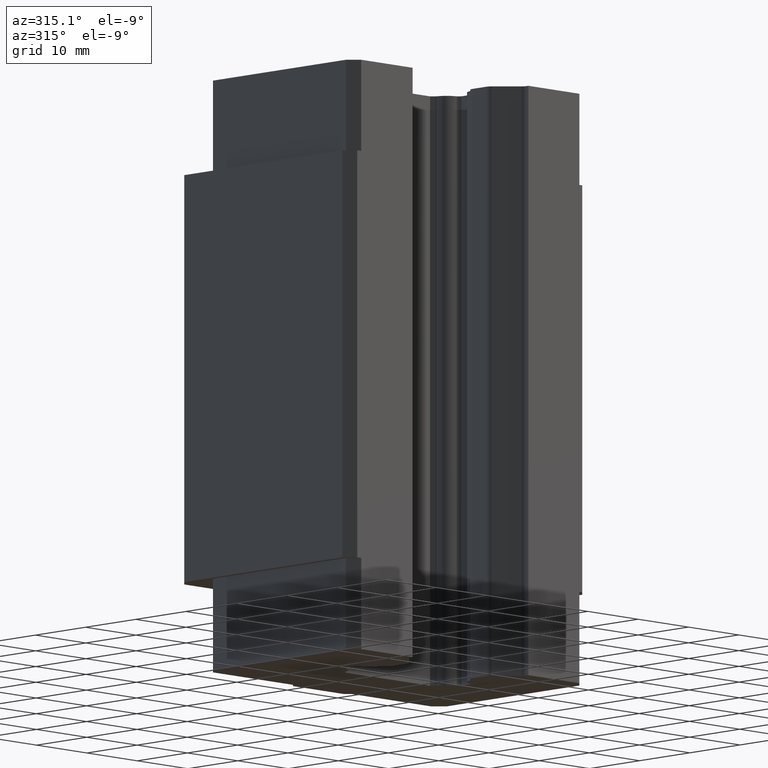
[diagram: clean part render]
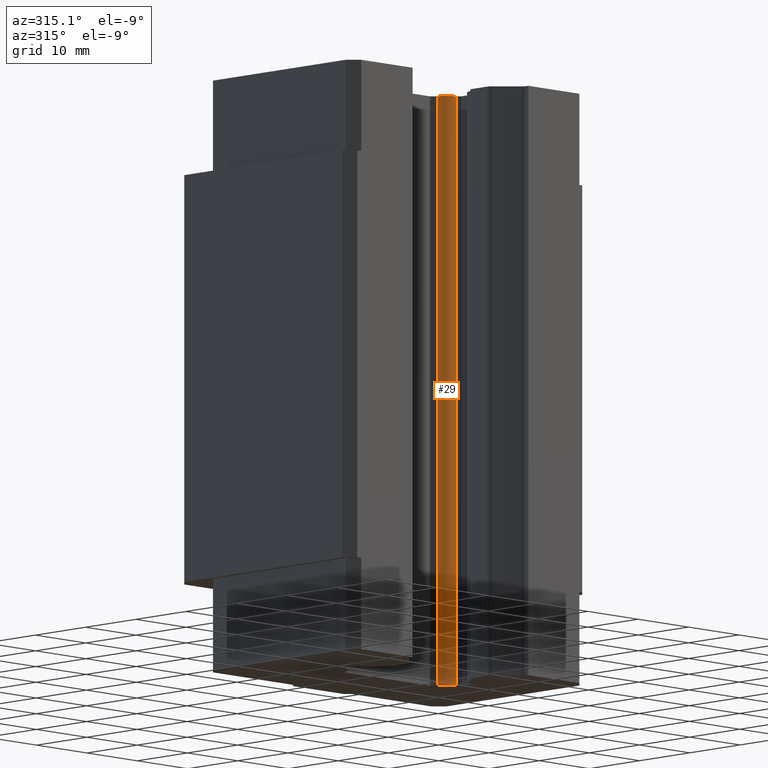
[diagram: same view with one face highlighted and labeled with its STEP entity id]
A machine part, auxiliary view. The second image highlights one B-rep face of the part: STEP entity #29.
In plain terms, the highlighted cylindrical surface (edge-blend (fillet) strip) has radius 2.43 mm, axis along (0, 0, 1).
Its self-contained STEP definition (entity closure, byte-faithful):
#26 = ORIENTED_EDGE ( 'NONE', *, *, #44, .T. ) ;
#27 = EDGE_LOOP ( 'NONE', ( #26, #45, #7052, #7053 ) ) ;
#29 = ADVANCED_FACE ( 'NONE', ( #10849 ), #10848, .T. ) ;
#44 = EDGE_CURVE ( 'NONE', #9110, #9065, #10888, .T. ) ;
#45 = ORIENTED_EDGE ( 'NONE', *, *, #9064, .T. ) ;
#2600 = CARTESIAN_POINT ( 'NONE',  ( 10.92831016077138200, -2.631505151967338000, 42.00000000000000700 ) ) ;
#2601 = CARTESIAN_POINT ( 'NONE',  ( 10.92831016077138200, -2.631505151967338000, -42.00000000000000000 ) ) ;
#2602 = DIRECTION ( 'NONE',  ( 0.0000000000000000000, 0.0000000000000000000, 1.000000000000000000 ) ) ;
#2603 = VECTOR ( 'NONE', #2602, 1000.000000000000000 ) ;
#2604 = CARTESIAN_POINT ( 'NONE',  ( 10.92831016059959200, -2.631505151938859500, -29.00000000000000000 ) ) ;
#2609 = LINE ( 'NONE', #2604, #2603 ) ;
#2617 = CARTESIAN_POINT ( 'NONE',  ( 9.073084848030692500, -0.7762798392256324800, 42.00000000000000700 ) ) ;
#2720 = DIRECTION ( 'NONE',  ( 0.0000000000000000000, 0.0000000000000000000, -1.000000000000000000 ) ) ;
#2721 = VECTOR ( 'NONE', #2720, 1000.000000000000000 ) ;
#2722 = CARTESIAN_POINT ( 'NONE',  ( 9.073084848057286300, -0.7762798393974257300, -29.00000000000000000 ) ) ;
#2723 = LINE ( 'NONE', #2722, #2721 ) ;
#2724 = CARTESIAN_POINT ( 'NONE',  ( 9.073084848030692500, -0.7762798392256324800, -42.00000000000000000 ) ) ;
#7047 = EDGE_CURVE ( 'NONE', #9058, #9066, #11838, .T. ) ;
#7052 = ORIENTED_EDGE ( 'NONE', *, *, #7047, .F. ) ;
#7053 = ORIENTED_EDGE ( 'NONE', *, *, #9112, .T. ) ;
#9058 = VERTEX_POINT ( 'NONE', #2617 ) ;
#9064 = EDGE_CURVE ( 'NONE', #9065, #9066, #2609, .T. ) ;
#9065 = VERTEX_POINT ( 'NONE', #2601 ) ;
#9066 = VERTEX_POINT ( 'NONE', #2600 ) ;
#9110 = VERTEX_POINT ( 'NONE', #2724 ) ;
#9112 = EDGE_CURVE ( 'NONE', #9058, #9110, #2723, .T. ) ;
#10844 = DIRECTION ( 'NONE',  ( 1.000000000000000000, 0.0000000000000000000, 0.0000000000000000000 ) ) ;
#10845 = DIRECTION ( 'NONE',  ( 0.0000000000000000000, 0.0000000000000000000, 1.000000000000000000 ) ) ;
#10846 = CARTESIAN_POINT ( 'NONE',  ( 11.44706701449000100, -0.2575229855059000300, -29.00000000000000000 ) ) ;
#10847 = AXIS2_PLACEMENT_3D ( 'NONE', #10846, #10845, #10844 ) ;
#10848 = CYLINDRICAL_SURFACE ( 'NONE', #10847, 2.429999999999999700 ) ;
#10849 = FACE_OUTER_BOUND ( 'NONE', #27, .T. ) ;
#10884 = DIRECTION ( 'NONE',  ( 1.000000000000000000, 0.0000000000000000000, 0.0000000000000000000 ) ) ;
#10885 = DIRECTION ( 'NONE',  ( 0.0000000000000000000, 0.0000000000000000000, 1.000000000000000000 ) ) ;
#10886 = CARTESIAN_POINT ( 'NONE',  ( 11.44706701449000100, -0.2575229855059000300, -42.00000000000000000 ) ) ;
#10887 = AXIS2_PLACEMENT_3D ( 'NONE', #10886, #10885, #10884 ) ;
#10888 = CIRCLE ( 'NONE', #10887, 2.429999999999999700 ) ;
#11834 = DIRECTION ( 'NONE',  ( 1.000000000000000000, 0.0000000000000000000, 0.0000000000000000000 ) ) ;
#11835 = DIRECTION ( 'NONE',  ( 0.0000000000000000000, 0.0000000000000000000, 1.000000000000000000 ) ) ;
#11836 = CARTESIAN_POINT ( 'NONE',  ( 11.44706701449000100, -0.2575229855059000300, 42.00000000000000700 ) ) ;
#11837 = AXIS2_PLACEMENT_3D ( 'NONE', #11836, #11835, #11834 ) ;
#11838 = CIRCLE ( 'NONE', #11837, 2.429999999999999700 ) ;